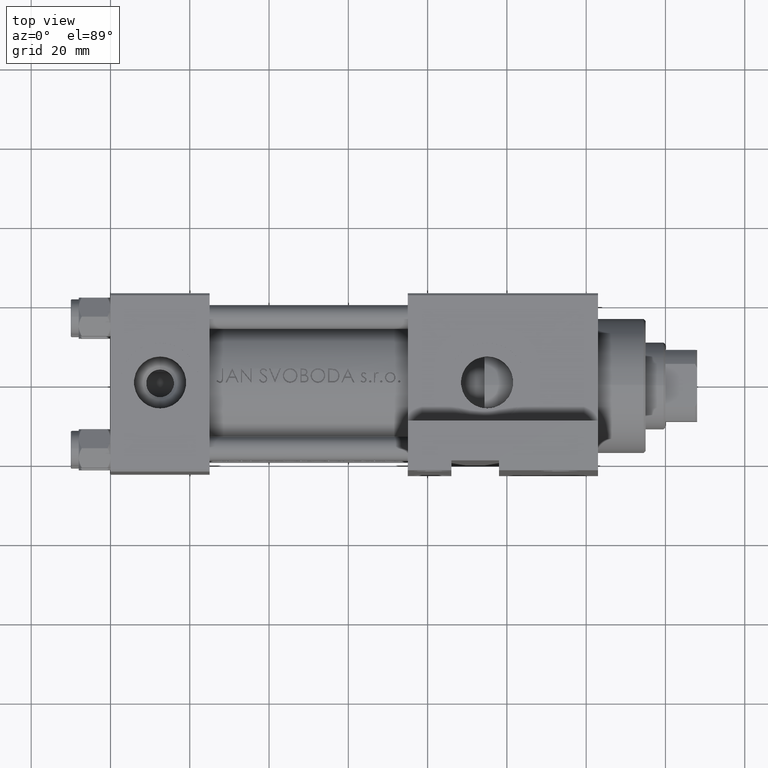
[diagram: clean part render]
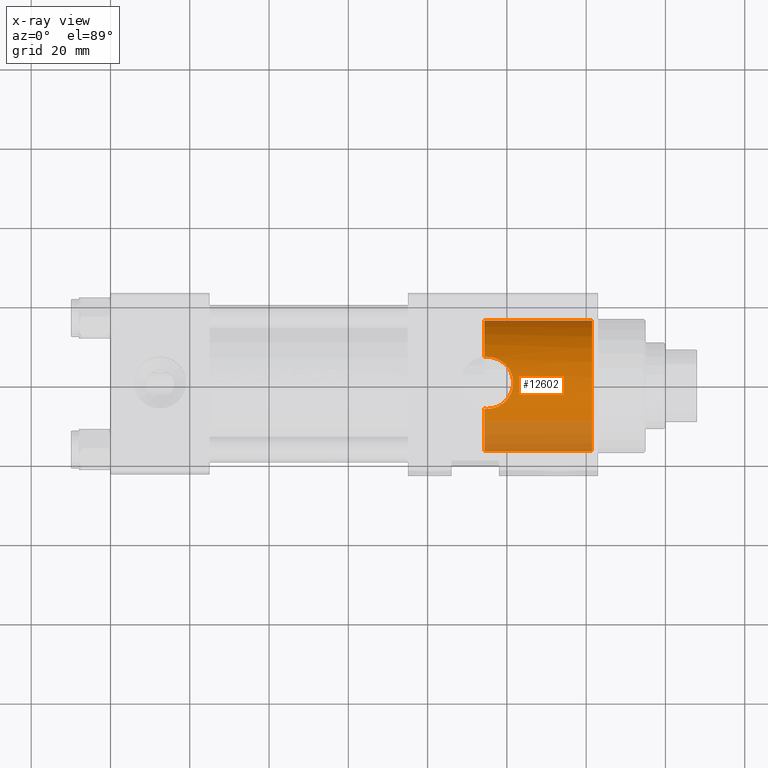
[diagram: x-ray — body ghosted, one internal face saturated and labeled with its STEP entity id]
A machine part, top view, then the same camera in x-ray: the body is ghosted and one INTERNAL B-rep face — a face not visible from any outside direction — is saturated and labeled: STEP entity #12602.
In plain terms, the highlighted cylindrical surface (partial cylindrical patch) has radius 16.5 mm, axis along (1, 0, 0).
Its self-contained STEP definition (entity closure, byte-faithful):
#89 = CARTESIAN_POINT ( 'NONE',  ( 94.30000000000001137, 2.020667218593133100E-15, 16.00000000000000355 ) ) ;
#414 = EDGE_CURVE ( 'NONE', #22230, #37551, #17084, .T. ) ;
#568 = EDGE_CURVE ( 'NONE', #3189, #37551, #35080, .T. ) ;
#788 = CARTESIAN_POINT ( 'NONE',  ( 98.30796852157997989, -15.66216623791877716, -5.692129803036769964 ) ) ;
#834 = AXIS2_PLACEMENT_3D ( 'NONE', #41846, #34121, #38224 ) ;
#1511 = CARTESIAN_POINT ( 'NONE',  ( 101.3588356637530268, -16.35197207035328759, 1.746060943800894938 ) ) ;
#1815 = ORIENTED_EDGE ( 'NONE', *, *, #7082, .F. ) ;
#2675 = CARTESIAN_POINT ( 'NONE',  ( 95.86722621433905545, -14.92450725701553793, 6.536889544069380165 ) ) ;
#3189 = VERTEX_POINT ( 'NONE', #89 ) ;
#3849 = EDGE_CURVE ( 'NONE', #35384, #42342, #22098, .T. ) ;
#4640 = CARTESIAN_POINT ( 'NONE',  ( 100.9152909999797316, -16.32739268020748113, -2.914679961596275515 ) ) ;
#4849 = CARTESIAN_POINT ( 'NONE',  ( 95.00000000000001421, -15.33895693976614361, -6.580000000000001847 ) ) ;
#5248 = CARTESIAN_POINT ( 'NONE',  ( 94.30000000000001137, 0.000000000000000000, -16.99999999999999645 ) ) ;
#5359 = CARTESIAN_POINT ( 'NONE',  ( 97.13520237018700243, -15.06229937542716613, 6.238648670809852526 ) ) ;
#6910 = EDGE_CURVE ( 'NONE', #3189, #35384, #16288, .T. ) ;
#7071 = LINE ( 'NONE', #15264, #10616 ) ;
#7082 = EDGE_CURVE ( 'NONE', #43145, #42342, #7071, .T. ) ;
#7316 = CARTESIAN_POINT ( 'NONE',  ( 94.30000000000001137, -15.35370509061271527, -6.542660009506837682 ) ) ;
#7629 = EDGE_CURVE ( 'NONE', #20573, #29921, #10933, .T. ) ;
#7982 = DIRECTION ( 'NONE',  ( 1.000000000000000000, 0.000000000000000000, 0.000000000000000000 ) ) ;
#8227 = CARTESIAN_POINT ( 'NONE',  ( 99.49133867636233219, -15.62185234982736937, 4.813414449261098405 ) ) ;
#8692 = CARTESIAN_POINT ( 'NONE',  ( 94.30000000000001137, -14.92149255237200300, 6.542660009506839458 ) ) ;
#8712 = CARTESIAN_POINT ( 'NONE',  ( 101.4150129121088924, -16.47223324460452432, -1.480115068709090487 ) ) ;
#8787 = FACE_OUTER_BOUND ( 'NONE', #21907, .T. ) ;
#8954 = CARTESIAN_POINT ( 'NONE',  ( 98.83150468028263447, -15.42728545299678444, 5.353628400115725938 ) ) ;
#9076 = DIRECTION ( 'NONE',  ( 1.000000000000000000, 0.000000000000000000, 0.000000000000000000 ) ) ;
#9333 = DIRECTION ( 'NONE',  ( 1.000000000000000000, 0.000000000000000000, 0.000000000000000000 ) ) ;
#10278 = CIRCLE ( 'NONE', #25667, 16.50000000000000000 ) ;
#10616 = VECTOR ( 'NONE', #10930, 1000.000000000000000 ) ;
#10930 = DIRECTION ( 'NONE',  ( 1.000000000000000000, -0.000000000000000000, -0.000000000000000000 ) ) ;
#10933 = B_SPLINE_CURVE_WITH_KNOTS ( 'NONE', 3,
 ( #31108, #37895, #23634, #4849 ),
 .UNSPECIFIED., .F., .F.,
 ( 4, 4 ),
 ( 0.000000000000000000, 0.0006965685122027203986 ),
 .UNSPECIFIED. ) ;
#11644 = ORIENTED_EDGE ( 'NONE', *, *, #7629, .T. ) ;
#11859 = CARTESIAN_POINT ( 'NONE',  ( 99.02847767405266666, -15.81237954518120681, -5.220358165594040756 ) ) ;
#12193 = DIRECTION ( 'NONE',  ( 1.000000000000000000, -0.000000000000000000, -0.000000000000000000 ) ) ;
#12602 = ADVANCED_FACE ( 'NONE', ( #8787 ), #30968, .F. ) ;
#13423 = CARTESIAN_POINT ( 'NONE',  ( 121.5000000000000142, 0.000000000000000000, -0.4999999999999967804 ) ) ;
#15264 = CARTESIAN_POINT ( 'NONE',  ( 94.30000000000001137, 0.000000000000000000, -16.99999999999999645 ) ) ;
#15480 = CARTESIAN_POINT ( 'NONE',  ( 101.2284342886651558, -16.28834046731283181, 2.164775913349310077 ) ) ;
#15627 = ORIENTED_EDGE ( 'NONE', *, *, #45054, .T. ) ;
#15721 = CARTESIAN_POINT ( 'NONE',  ( 99.35749147708605733, -15.89197804239858591, -4.948973207531823348 ) ) ;
#15958 = CARTESIAN_POINT ( 'NONE',  ( 95.00000000000001421, -15.33895693976614361, -6.580000000000001847 ) ) ;
#16204 = CARTESIAN_POINT ( 'NONE',  ( 100.2113291612782859, -15.86733303061777001, 4.040163306179451297 ) ) ;
#16288 = LINE ( 'NONE', #31448, #46108 ) ;
#17084 = B_SPLINE_CURVE_WITH_KNOTS ( 'NONE', 3,
 ( #39850, #18367, #43956, #36229 ),
 .UNSPECIFIED., .F., .F.,
 ( 4, 4 ),
 ( 0.02150003536765269715, 0.02219197285507958431 ),
 .UNSPECIFIED. ) ;
#18367 = CARTESIAN_POINT ( 'NONE',  ( 94.76740894158342599, -14.90381159301203695, 6.580000000000004512 ) ) ;
#18400 = CARTESIAN_POINT ( 'NONE',  ( 95.00000000000001421, -15.33895693976614361, -6.580000000000001847 ) ) ;
#19051 = ORIENTED_EDGE ( 'NONE', *, *, #6910, .T. ) ;
#19099 = CARTESIAN_POINT ( 'NONE',  ( 95.43411291541292485, -15.33895693976614361, -6.580000000000001847 ) ) ;
#19823 = CARTESIAN_POINT ( 'NONE',  ( 101.5709677562896331, -16.50116693238018684, -0.4077177105366182608 ) ) ;
#20062 = CARTESIAN_POINT ( 'NONE',  ( 96.71439789280182708, -15.00324899027945413, 6.367404972463834412 ) ) ;
#20573 = VERTEX_POINT ( 'NONE', #7316 ) ;
#20906 = DIRECTION ( 'NONE',  ( 0.000000000000000000, 0.000000000000000000, 1.000000000000000000 ) ) ;
#21907 = EDGE_LOOP ( 'NONE', ( #42733, #19051, #35816, #1815, #36500, #11644, #15627, #47473 ) ) ;
#22098 = CIRCLE ( 'NONE', #32846, 16.50000000000000000 ) ;
#22230 = VERTEX_POINT ( 'NONE', #41062 ) ;
#22518 = B_SPLINE_CURVE_WITH_KNOTS ( 'NONE', 3,
 ( #15958, #19099, #41776, #30666, #45161, #38638, #34532, #788, #27516, #11859, #15721, #23189, #30905, #37924, #37684, #26562, #4640, #42252, #42017, #45410, #8712, #23427, #38160, #19823, #45647, #44926, #33808, #1511, #15480, #30179, #23660, #16204, #38397, #8227, #27279, #41297, #8954, #34770, #22949, #5359, #20062, #2675, #27988, #35941 ),
 .UNSPECIFIED., .F., .F.,
 ( 4, 2, 2, 2, 2, 2, 2, 2, 2, 2, 2, 2, 2, 2, 2, 2, 2, 2, 2, 2, 2, 4 ),
 ( 0.0006965685122027203986, 0.001996785190668331871, 0.003297001869133943559, 0.003947110208366748536, 0.004597218547599553513, 0.005897435226065166937, 0.006547543565297973649, 0.007197651904530778626, 0.008497868582996411999, 0.009147976922229229119, 0.009798085261462042769, 0.01044819360069485815, 0.01109830193992767354, 0.01239851861839330431, 0.01369873529685893161, 0.01499895197532456238, 0.01629916865379019142, 0.01694927699302300333, 0.01759938533225581872, 0.01889960201072144255, 0.02019981868918706985, 0.02150003536765269715 ),
 .UNSPECIFIED. ) ;
#22949 = CARTESIAN_POINT ( 'NONE',  ( 97.92589090463729917, -15.20539478107087916, 5.909229121773031501 ) ) ;
#23189 = CARTESIAN_POINT ( 'NONE',  ( 99.81133935170181815, -16.01015148505542740, -4.493698987271225853 ) ) ;
#23427 = CARTESIAN_POINT ( 'NONE',  ( 101.4983281949435394, -16.49200114892362734, -1.055870233478336750 ) ) ;
#23539 = AXIS2_PLACEMENT_3D ( 'NONE', #34038, #7982, #30166 ) ;
#23634 = CARTESIAN_POINT ( 'NONE',  ( 94.76743154227646926, -15.33895693976614361, -6.580000000000001847 ) ) ;
#23660 = CARTESIAN_POINT ( 'NONE',  ( 100.6923054650132059, -16.05392064770339289, 3.328442527785248295 ) ) ;
#24104 = CARTESIAN_POINT ( 'NONE',  ( 121.5000000000000142, 2.020667218593133100E-15, 16.00000000000000355 ) ) ;
#25667 = AXIS2_PLACEMENT_3D ( 'NONE', #27407, #9076, #38521 ) ;
#26562 = CARTESIAN_POINT ( 'NONE',  ( 100.7127167590448948, -16.26592437390081969, -3.293073257702374246 ) ) ;
#27279 = CARTESIAN_POINT ( 'NONE',  ( 99.33413285564040507, -15.57266778701109899, 4.955512184649311536 ) ) ;
#27407 = CARTESIAN_POINT ( 'NONE',  ( 94.30000000000001137, 0.000000000000000000, -0.4999999999999967804 ) ) ;
#27516 = CARTESIAN_POINT ( 'NONE',  ( 98.49403093643670104, -15.69908748261051734, -5.579806515649046617 ) ) ;
#27988 = CARTESIAN_POINT ( 'NONE',  ( 95.43706083123190353, -14.90381159301204406, 6.580000000000003624 ) ) ;
#29921 = VERTEX_POINT ( 'NONE', #18400 ) ;
#30166 = DIRECTION ( 'NONE',  ( 0.000000000000000000, 0.000000000000000000, -1.000000000000000000 ) ) ;
#30179 = CARTESIAN_POINT ( 'NONE',  ( 100.8954531384124778, -16.13952493269048460, 2.953520058509838009 ) ) ;
#30666 = CARTESIAN_POINT ( 'NONE',  ( 96.72328628704786979, -15.42257739805874017, -6.365374442724283099 ) ) ;
#30905 = CARTESIAN_POINT ( 'NONE',  ( 99.95667384763370933, -16.04954766180734538, -4.332917015252684578 ) ) ;
#30968 = CYLINDRICAL_SURFACE ( 'NONE', #834, 16.50000000000000000 ) ;
#31108 = CARTESIAN_POINT ( 'NONE',  ( 94.30000000000001137, -15.35370509061271527, -6.542660009506837682 ) ) ;
#31448 = CARTESIAN_POINT ( 'NONE',  ( 94.30000000000001137, 2.020667218593133100E-15, 16.00000000000000355 ) ) ;
#32846 = AXIS2_PLACEMENT_3D ( 'NONE', #13423, #9333, #20906 ) ;
#33808 = CARTESIAN_POINT ( 'NONE',  ( 101.5326949847451061, -16.44614851479039075, 0.8985633279690183883 ) ) ;
#34038 = CARTESIAN_POINT ( 'NONE',  ( 94.30000000000001137, 0.000000000000000000, -0.4999999999999967804 ) ) ;
#34121 = DIRECTION ( 'NONE',  ( 1.000000000000000000, -0.000000000000000000, -0.000000000000000000 ) ) ;
#34532 = CARTESIAN_POINT ( 'NONE',  ( 97.92778374562576005, -15.59286003707434176, -5.896700753237611892 ) ) ;
#34770 = CARTESIAN_POINT ( 'NONE',  ( 98.30013566022965676, -15.28950433861736968, 5.708499388656722573 ) ) ;
#35080 = CIRCLE ( 'NONE', #23539, 16.50000000000000000 ) ;
#35384 = VERTEX_POINT ( 'NONE', #24104 ) ;
#35816 = ORIENTED_EDGE ( 'NONE', *, *, #3849, .T. ) ;
#35941 = CARTESIAN_POINT ( 'NONE',  ( 95.00000000000004263, -14.90381159301204583, 6.580000000000008953 ) ) ;
#36229 = CARTESIAN_POINT ( 'NONE',  ( 94.30000000000001137, -14.92149255237200300, 6.542660009506839458 ) ) ;
#36500 = ORIENTED_EDGE ( 'NONE', *, *, #42182, .F. ) ;
#37551 = VERTEX_POINT ( 'NONE', #8692 ) ;
#37684 = CARTESIAN_POINT ( 'NONE',  ( 100.3567953874910472, -16.16208858154857708, -3.827128066706360965 ) ) ;
#37895 = CARTESIAN_POINT ( 'NONE',  ( 94.53410693024947875, -15.34384745132401129, -6.567707138799283584 ) ) ;
#37924 = CARTESIAN_POINT ( 'NONE',  ( 100.2294062955909197, -16.12552788553618299, -3.999511881282010073 ) ) ;
#38160 = CARTESIAN_POINT ( 'NONE',  ( 101.5296148987571740, -16.49789263875700485, -0.8414156283381424295 ) ) ;
#38224 = DIRECTION ( 'NONE',  ( 0.000000000000000000, 0.000000000000000000, -1.000000000000000000 ) ) ;
#38397 = CARTESIAN_POINT ( 'NONE',  ( 99.94085831556297705, -15.76925504840587600, 4.366124845913783581 ) ) ;
#38521 = DIRECTION ( 'NONE',  ( 0.000000000000000000, 0.000000000000000000, -1.000000000000000000 ) ) ;
#38638 = CARTESIAN_POINT ( 'NONE',  ( 97.73356358058538262, -15.56042039305880031, -5.989176551187636477 ) ) ;
#39850 = CARTESIAN_POINT ( 'NONE',  ( 95.00000000000004263, -14.90381159301204583, 6.580000000000008953 ) ) ;
#41062 = CARTESIAN_POINT ( 'NONE',  ( 95.00000000000004263, -14.90381159301204583, 6.580000000000008953 ) ) ;
#41297 = CARTESIAN_POINT ( 'NONE',  ( 99.00441944774540559, -15.47541940897811052, 5.225555808626246801 ) ) ;
#41776 = CARTESIAN_POINT ( 'NONE',  ( 95.86560631136352129, -15.35602623177227244, -6.537463815344781715 ) ) ;
#41846 = CARTESIAN_POINT ( 'NONE',  ( 94.30000000000001137, 0.000000000000000000, -0.4999999999999967804 ) ) ;
#42017 = CARTESIAN_POINT ( 'NONE',  ( 101.2380364384482760, -16.42309107580809879, -2.104813929365256353 ) ) ;
#42182 = EDGE_CURVE ( 'NONE', #20573, #43145, #10278, .T. ) ;
#42252 = CARTESIAN_POINT ( 'NONE',  ( 101.1646761068264908, -16.40157007731483318, -2.310968459578449874 ) ) ;
#42342 = VERTEX_POINT ( 'NONE', #43550 ) ;
#42733 = ORIENTED_EDGE ( 'NONE', *, *, #568, .F. ) ;
#43145 = VERTEX_POINT ( 'NONE', #5248 ) ;
#43550 = CARTESIAN_POINT ( 'NONE',  ( 121.5000000000000142, 0.000000000000000000, -16.99999999999999645 ) ) ;
#43956 = CARTESIAN_POINT ( 'NONE',  ( 94.53264108108572827, -14.90974480628696952, 6.567550307416768263 ) ) ;
#44926 = CARTESIAN_POINT ( 'NONE',  ( 101.5778417032764054, -16.47736198929498386, 0.4683372378626033394 ) ) ;
#45054 = EDGE_CURVE ( 'NONE', #29921, #22230, #22518, .T. ) ;
#45161 = CARTESIAN_POINT ( 'NONE',  ( 97.13848513234270854, -15.47127985552786811, -6.237636073092438060 ) ) ;
#45410 = CARTESIAN_POINT ( 'NONE',  ( 101.3629836567160822, -16.45835575231208026, -1.689905106513930111 ) ) ;
#45647 = CARTESIAN_POINT ( 'NONE',  ( 101.5809669525391286, -16.49848120805964058, -0.1871076695943843793 ) ) ;
#46108 = VECTOR ( 'NONE', #12193, 1000.000000000000000 ) ;
#47473 = ORIENTED_EDGE ( 'NONE', *, *, #414, .T. ) ;